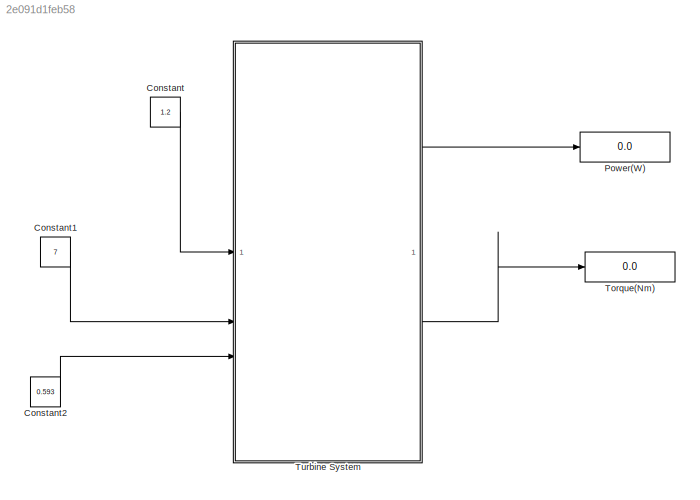
MODEL slx_2e091d1feb58
KIND model
CONFIG AbsTol = auto
CONFIG EnableMultiTasking = off
CONFIG FixedStep = auto
CONFIG MaxStep = auto
CONFIG MinStep = auto
CONFIG RelTol = 1e-3
CONFIG SampleTimeConstraint = Unconstrained
CONFIG SolverName = VariableStepAuto
CONFIG StartTime = 0.0
CONFIG StopTime = 10.0
BLOCK [Constant] Constant
  Value = 1.2
BLOCK [Constant] Constant1
  Value = 7
BLOCK [Constant] Constant2
  Value = 0.593
BLOCK [Display] Power(W)
  Decimation = 1
BLOCK [Display] Torque(Nm)
  Decimation = 1
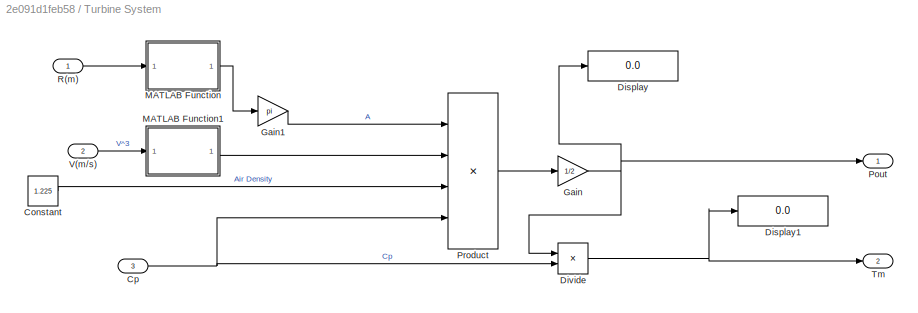
BLOCK [SubSystem] Turbine System
BLOCK [Constant] Turbine System/Constant
  Value = 1.225
BLOCK [Inport] Turbine System/Cp
  Port = 3
BLOCK [Display] Turbine System/Display
  Decimation = 1
BLOCK [Display] Turbine System/Display1
  Decimation = 1
BLOCK [Product] Turbine System/Divide
  Inputs = /*
BLOCK [Gain] Turbine System/Gain
  Gain = 1/2
BLOCK [Gain] Turbine System/Gain1
  Gain = pi
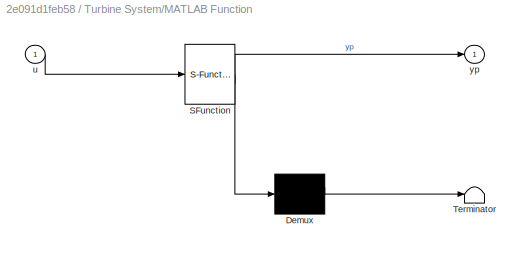
BLOCK [SubSystem] Turbine System/MATLAB Function
  ErrorFcn = Stateflow.Translate.translate
  PermitHierarchicalResolution = ExplicitOnly
  SFBlockType = MATLAB Function
  TreatAsAtomicUnit = on
BLOCK [Demux] Turbine System/MATLAB Function/ Demux 
  Outputs = 1
BLOCK [S-Function] Turbine System/MATLAB Function/ SFunction 
  EnableBusSupport = on
  FunctionName = sf_sfun
  PortCounts = [1 2]
  SFcnIsStateOwnerBlock = off
  SFunctionDeploymentMode = off
  Tag = Stateflow S-Function 2
BLOCK [Terminator] Turbine System/MATLAB Function/ Terminator 
BLOCK [Inport] Turbine System/MATLAB Function/u
BLOCK [Outport] Turbine System/MATLAB Function/yp
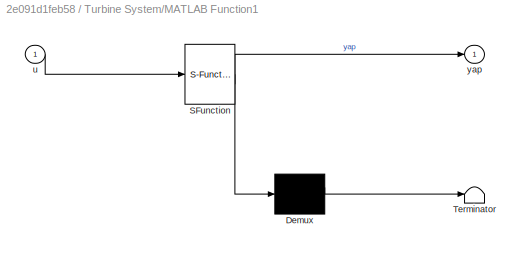
BLOCK [SubSystem] Turbine System/MATLAB Function1
  ErrorFcn = Stateflow.Translate.translate
  PermitHierarchicalResolution = ExplicitOnly
  SFBlockType = MATLAB Function
  TreatAsAtomicUnit = on
BLOCK [Demux] Turbine System/MATLAB Function1/ Demux 
  Outputs = 1
BLOCK [S-Function] Turbine System/MATLAB Function1/ SFunction 
  EnableBusSupport = on
  FunctionName = sf_sfun
  PortCounts = [1 2]
  SFcnIsStateOwnerBlock = off
  SFunctionDeploymentMode = off
  Tag = Stateflow S-Function 1
BLOCK [Terminator] Turbine System/MATLAB Function1/ Terminator 
BLOCK [Inport] Turbine System/MATLAB Function1/u
BLOCK [Outport] Turbine System/MATLAB Function1/yap
BLOCK [Outport] Turbine System/Pout
BLOCK [Product] Turbine System/Product
  Inputs = 4
BLOCK [Inport] Turbine System/R(m)
BLOCK [Outport] Turbine System/Tm
  Port = 2
BLOCK [Inport] Turbine System/V(m//s)
  Port = 2
LINE Constant1:1 -> Turbine System:2
LINE Constant2:1 -> Turbine System:3
LINE Constant:1 -> Turbine System:1
LINE Turbine System/Constant:1 -> Turbine System/Product:3
NET Turbine System/Cp:1 -> Turbine System/Divide:2, Turbine System/Product:4
NET Turbine System/Divide:1 -> Turbine System/Display1:1, Turbine System/Tm:1
LINE Turbine System/Gain1:1 -> Turbine System/Product:1
NET Turbine System/Gain:1 -> Turbine System/Display:1, Turbine System/Divide:1, Turbine System/Pout:1
LINE Turbine System/MATLAB Function1:1 -> Turbine System/Product:2
LINE Turbine System/MATLAB Function:1 -> Turbine System/Gain1:1
LINE Turbine System/Product:1 -> Turbine System/Gain:1
LINE Turbine System/R(m):1 -> Turbine System/MATLAB Function:1
LINE Turbine System/V(m//s):1 -> Turbine System/MATLAB Function1:1
LINE Turbine System:1 -> Power(W):1
LINE Turbine System:2 -> Torque(Nm):1
note: NET lines group one-source signal fan-out (src -> all destinations, sorted); 1:1 wires keep LINE
CHART Turbine System/MATLAB Function states=1 transitions=1
  STATE_LABEL 'eML_blk_kernel()'
  STATE_LABEL 'SCRIPT:\nfunction yp = fcn(u)\n\nyp = u^2;\nend\n'
CHART Turbine System/MATLAB Function1 states=1 transitions=1
  STATE_LABEL 'eML_blk_kernel()'
  STATE_LABEL 'SCRIPT:\nfunction yap = fcn(u)\n\nyap = u^3;\nend\n'
CHART  states=0 transitions=0
CHART  states=0 transitions=0
